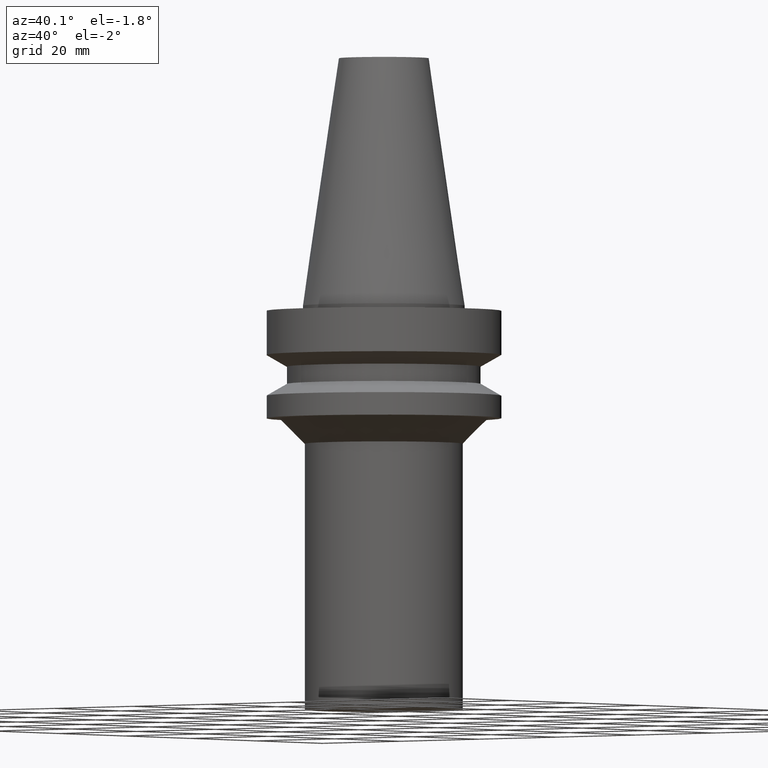
[diagram: clean part render]
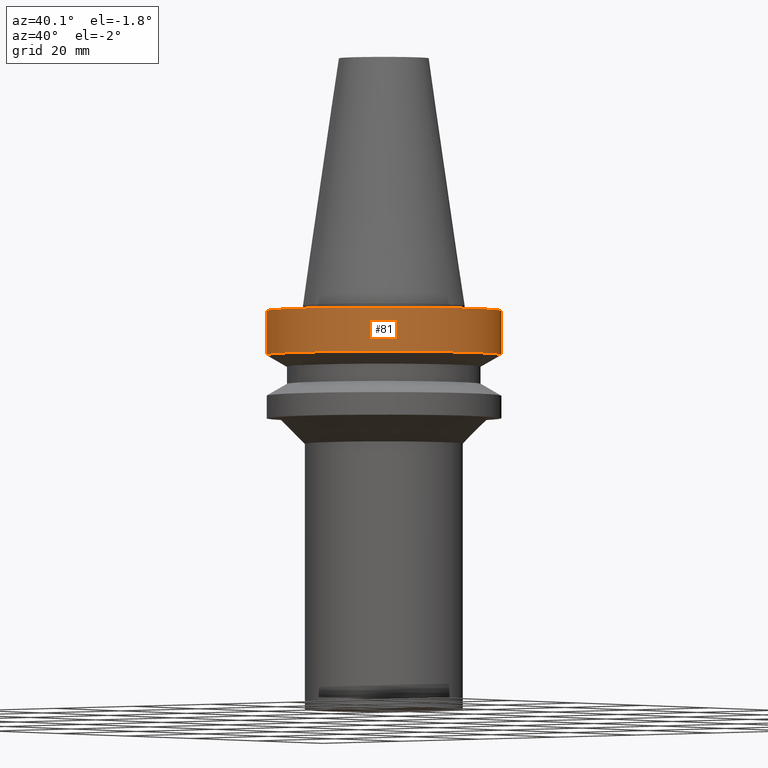
[diagram: same view with one face highlighted and labeled with its STEP entity id]
A machine part, auxiliary view. The second image highlights one B-rep face of the part: STEP entity #81.
In plain terms, the highlighted cylindrical surface (bore or boss wall) has radius 23 mm, axis along (0, 0, -1).
Its self-contained STEP definition (entity closure, byte-faithful):
#81=ADVANCED_FACE('Unnamed[1]',(#179,#180),#181,.T.);
#100=EDGE_CURVE('Unnamed[1]',#210,#210,#211,.T.);
#109=EDGE_CURVE('Unnamed[1]',#224,#224,#225,.T.);
#179=FACE_BOUND('',#299,.T.);
#180=FACE_BOUND('',#300,.T.);
#181=CYLINDRICAL_SURFACE('',#301,23.0);
#210=VERTEX_POINT('',#337);
#211=CIRCLE('',#338,23.0);
#224=VERTEX_POINT('',#355);
#225=CIRCLE('',#356,23.0);
#299=EDGE_LOOP('',(#417));
#300=EDGE_LOOP('',(#418));
#301=AXIS2_PLACEMENT_3D('',#419,#420,#421);
#337=CARTESIAN_POINT('',(2.22044604925031E-016,23.0,-0.999999999999997));
#338=AXIS2_PLACEMENT_3D('',#454,#455,#456);
#355=CARTESIAN_POINT('',(2.1316282072803E-015,23.0,-9.59999999999999));
#356=AXIS2_PLACEMENT_3D('',#469,#470,#471);
#417=ORIENTED_EDGE('',*,*,#109,.F.);
#418=ORIENTED_EDGE('',*,*,#100,.T.);
#419=CARTESIAN_POINT('',(1.17683640610267E-015,6.49062803548097E-016,-5.3));
#420=DIRECTION('',(2.22044604925031E-016,1.22464679914735E-016,-1.0));
#421=DIRECTION('',(-6.16297582203915E-033,1.0,1.22464679914735E-016));
#454=CARTESIAN_POINT('',(2.22044604925031E-016,1.22464679914735E-016,-1.0));
#455=DIRECTION('',(2.22044604925031E-016,1.22464679914735E-016,-1.0));
#456=DIRECTION('',(-6.16297582203915E-033,1.0,1.22464679914735E-016));
#469=CARTESIAN_POINT('',(2.1316282072803E-015,1.17566092718146E-015,-9.59999999999999));
#470=DIRECTION('',(2.22044604925031E-016,1.22464679914735E-016,-1.0));
#471=DIRECTION('',(-6.16297582203915E-033,1.0,1.22464679914735E-016));